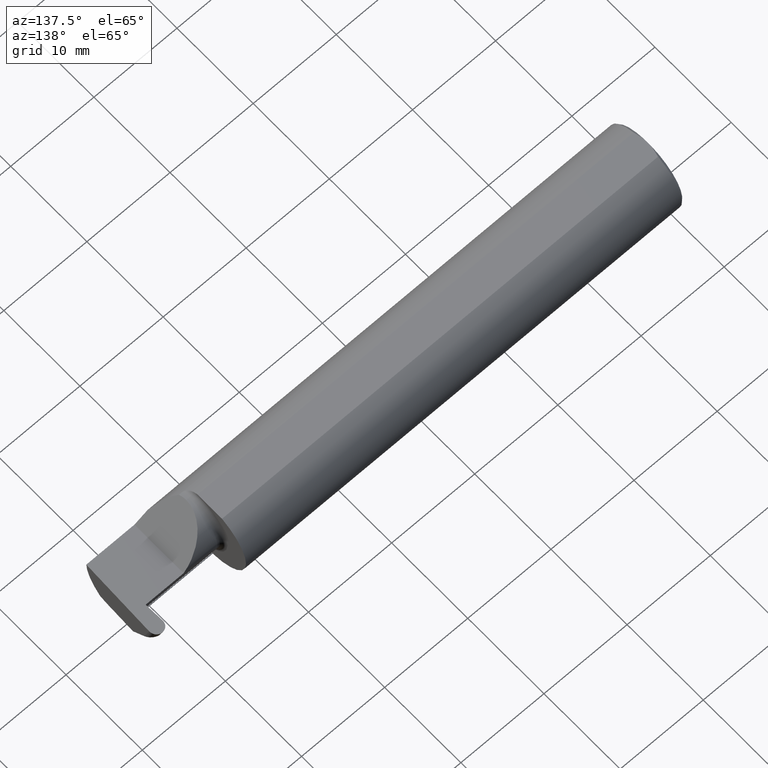
[diagram: clean part render]
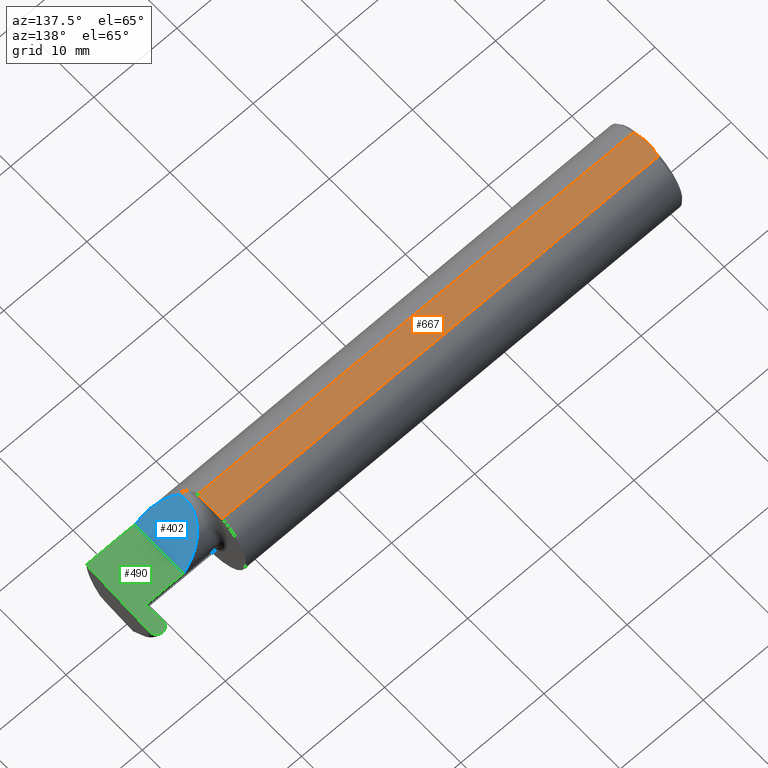
[diagram: same view with three faces highlighted in distinct colors, each labeled with its STEP entity id]
A machine part, auxiliary view with three faces highlighted in distinct colors.
Their STEP definitions:

[orange] entity #667 — the highlighted planar face has unit normal (0, 0, 1).
#13 = VERTEX_POINT ( 'NONE', #480 ) ;
#19 = CARTESIAN_POINT ( 'NONE',  ( 0.000000000000000000, 0.06325108694718235836, 0.1763499999999999235 ) ) ;
#20 = EDGE_CURVE ( 'NONE', #189, #408, #139, .T. ) ;
#48 = ORIENTED_EDGE ( 'NONE', *, *, #171, .T. ) ;
#54 = EDGE_CURVE ( 'NONE', #640, #363, #390, .T. ) ;
#57 = CARTESIAN_POINT ( 'NONE',  ( 0.005155213631852355663, 0.04890080824240217866, 0.1763499999999999235 ) ) ;
#68 = AXIS2_PLACEMENT_3D ( 'NONE', #162, #338, #772 ) ;
#70 = CARTESIAN_POINT ( 'NONE',  ( 0.009999999999999346217, -0.06325108694718235836, 0.1763499999999999235 ) ) ;
#75 = EDGE_CURVE ( 'NONE', #408, #640, #115, .T. ) ;
#87 = CARTESIAN_POINT ( 'NONE',  ( 0.000000000000000000, -0.01880691362239451242, 0.1763499999999999235 ) ) ;
#115 = LINE ( 'NONE', #542, #391 ) ;
#130 = ORIENTED_EDGE ( 'NONE', *, *, #570, .T. ) ;
#139 = B_SPLINE_CURVE_WITH_KNOTS ( 'NONE', 3,
 ( #620, #173, #610, #420 ),
 .UNSPECIFIED., .F., .F.,
 ( 4, 4 ),
 ( 0.009771445421851449736, 0.01092787937989102981 ),
 .UNSPECIFIED. ) ;
#162 = CARTESIAN_POINT ( 'NONE',  ( 2.876828993045917215, 0.1873499999999998500, 0.1763499999999999235 ) ) ;
#171 = EDGE_CURVE ( 'NONE', #624, #13, #260, .T. ) ;
#173 = CARTESIAN_POINT ( 'NONE',  ( 0.005151108632379595466, -0.04888864921576189376, 0.1763499999999999235 ) ) ;
#185 = VECTOR ( 'NONE', #458, 39.37007874015748143 ) ;
#189 = VERTEX_POINT ( 'NONE', #70 ) ;
#209 = VECTOR ( 'NONE', #721, 39.37007874015748143 ) ;
#260 = LINE ( 'NONE', #810, #601 ) ;
#273 = CARTESIAN_POINT ( 'NONE',  ( 0.000000000000000000, -0.06325108694718235836, 0.1763499999999999235 ) ) ;
#285 = ORIENTED_EDGE ( 'NONE', *, *, #54, .F. ) ;
#317 = EDGE_CURVE ( 'NONE', #13, #363, #707, .T. ) ;
#328 = EDGE_LOOP ( 'NONE', ( #130, #48, #679, #285, #341, #465 ) ) ;
#338 = DIRECTION ( 'NONE',  ( 0.000000000000000000, 0.000000000000000000, 1.000000000000000000 ) ) ;
#341 = ORIENTED_EDGE ( 'NONE', *, *, #75, .F. ) ;
#362 = CARTESIAN_POINT ( 'NONE',  ( 0.009999999999999346217, 0.06325108694718235836, 0.1763499999999999235 ) ) ;
#363 = VERTEX_POINT ( 'NONE', #768 ) ;
#370 = CARTESIAN_POINT ( 'NONE',  ( 0.000000000000000000, 0.01880691362239451242, 0.1763499999999999235 ) ) ;
#390 = B_SPLINE_CURVE_WITH_KNOTS ( 'NONE', 3,
 ( #370, #425, #57, #362 ),
 .UNSPECIFIED., .F., .F.,
 ( 4, 4 ),
 ( 0.01188664626022267051, 0.01304646959483758001 ),
 .UNSPECIFIED. ) ;
#391 = VECTOR ( 'NONE', #808, 39.37007874015748143 ) ;
#408 = VERTEX_POINT ( 'NONE', #87 ) ;
#420 = CARTESIAN_POINT ( 'NONE',  ( 0.000000000000000000, -0.01880691362239451242, 0.1763499999999999235 ) ) ;
#425 = CARTESIAN_POINT ( 'NONE',  ( 0.001616639753276218755, 0.03405189565400963680, 0.1763499999999999235 ) ) ;
#458 = DIRECTION ( 'NONE',  ( 1.000000000000000000, 0.000000000000000000, 0.000000000000000000 ) ) ;
#465 = ORIENTED_EDGE ( 'NONE', *, *, #20, .F. ) ;
#475 = FACE_OUTER_BOUND ( 'NONE', #328, .T. ) ;
#480 = CARTESIAN_POINT ( 'NONE',  ( 2.075000000000000178, 0.06325108694718235836, 0.1763499999999999235 ) ) ;
#542 = CARTESIAN_POINT ( 'NONE',  ( 0.000000000000000000, 0.1873499999999998500, 0.1763499999999999235 ) ) ;
#570 = EDGE_CURVE ( 'NONE', #189, #624, #612, .T. ) ;
#601 = VECTOR ( 'NONE', #696, 39.37007874015748143 ) ;
#610 = CARTESIAN_POINT ( 'NONE',  ( 0.001595548104417217512, -0.03385300050298979679, 0.1763499999999999235 ) ) ;
#612 = LINE ( 'NONE', #273, #185 ) ;
#620 = CARTESIAN_POINT ( 'NONE',  ( 0.009999999999999346217, -0.06325108694718235836, 0.1763499999999999235 ) ) ;
#624 = VERTEX_POINT ( 'NONE', #659 ) ;
#640 = VERTEX_POINT ( 'NONE', #789 ) ;
#659 = CARTESIAN_POINT ( 'NONE',  ( 2.075000000000000178, -0.06325108694718283020, 0.1763499999999999235 ) ) ;
#667 = ADVANCED_FACE ( 'NONE', ( #475 ), #727, .T. ) ;
#679 = ORIENTED_EDGE ( 'NONE', *, *, #317, .T. ) ;
#696 = DIRECTION ( 'NONE',  ( 0.000000000000000000, 1.000000000000000000, 0.000000000000000000 ) ) ;
#707 = LINE ( 'NONE', #19, #209 ) ;
#721 = DIRECTION ( 'NONE',  ( -1.000000000000000000, -0.000000000000000000, -0.000000000000000000 ) ) ;
#727 = PLANE ( 'NONE',  #68 ) ;
#768 = CARTESIAN_POINT ( 'NONE',  ( 0.009999999999999346217, 0.06325108694718235836, 0.1763499999999999235 ) ) ;
#772 = DIRECTION ( 'NONE',  ( 1.000000000000000000, 0.000000000000000000, -0.000000000000000000 ) ) ;
#789 = CARTESIAN_POINT ( 'NONE',  ( 0.000000000000000000, 0.01880691362239451242, 0.1763499999999999235 ) ) ;
#808 = DIRECTION ( 'NONE',  ( -0.000000000000000000, 1.000000000000000000, -0.000000000000000000 ) ) ;
#810 = CARTESIAN_POINT ( 'NONE',  ( 2.075000000000000178, 0.1873499999999998500, 0.1763499999999999235 ) ) ;

[blue] entity #402 — the highlighted planar face has unit normal (-0.7071, 0, -0.7071).
#2 = CARTESIAN_POINT ( 'NONE',  ( 2.113883229301068312, -0.1172600179964003175, 0.1461167706989304760 ) ) ;
#15 = DIRECTION ( 'NONE',  ( -0.7071067811865441310, 0.000000000000000000, -0.7071067811865510144 ) ) ;
#32 = CARTESIAN_POINT ( 'NONE',  ( 2.109999999999998987, -0.08334999999999999354, 0.1500000000000000500 ) ) ;
#92 = EDGE_CURVE ( 'NONE', #700, #756, #635, .T. ) ;
#118 = CARTESIAN_POINT ( 'NONE',  ( 2.202189699843948301, -0.1873500000000000443, 0.05781030015605120170 ) ) ;
#129 =( BOUNDED_CURVE ( )  B_SPLINE_CURVE ( 3, ( #591, #286, #213, #401 ),
 .UNSPECIFIED., .F., .F. ) 
 B_SPLINE_CURVE_WITH_KNOTS ( ( 4, 4 ),
 ( 0.000000000000000000, 1.570796326794896336 ),
 .UNSPECIFIED. ) 
 CURVE ( )  GEOMETRIC_REPRESENTATION_ITEM ( )  RATIONAL_B_SPLINE_CURVE ( ( 1.000000000000000000, 0.8047378541243650485, 0.8047378541243650485, 1.000000000000000000 ) ) 
 REPRESENTATION_ITEM ( '' )  );
#202 = CARTESIAN_POINT ( 'NONE',  ( 2.260000000000000231, -0.2500000000000000555, 2.939152317953647352E-17 ) ) ;
#211 = PLANE ( 'NONE',  #485 ) ;
#213 = CARTESIAN_POINT ( 'NONE',  ( 2.172132034355963359, 0.06665000000000001479, 0.08786796564403576149 ) ) ;
#214 = CARTESIAN_POINT ( 'NONE',  ( 2.109999999999998543, -0.09477667630339406402, 0.1500000000000000222 ) ) ;
#215 = EDGE_LOOP ( 'NONE', ( #666, #308, #771, #816 ) ) ;
#284 = LINE ( 'NONE', #518, #473 ) ;
#286 = CARTESIAN_POINT ( 'NONE',  ( 2.109999999999998543, 0.004517965644035750600, 0.1500000000000000500 ) ) ;
#308 = ORIENTED_EDGE ( 'NONE', *, *, #92, .F. ) ;
#335 = DIRECTION ( 'NONE',  ( -0.000000000000000000, 1.000000000000000000, -0.000000000000000000 ) ) ;
#361 = CARTESIAN_POINT ( 'NONE',  ( 2.109999999999998987, -0.08334999999999999354, 0.1500000000000000500 ) ) ;
#365 = CARTESIAN_POINT ( 'NONE',  ( 2.150065971957464850, -0.1623470442677540371, 0.1099340280425340488 ) ) ;
#366 = EDGE_CURVE ( 'NONE', #756, #549, #718, .T. ) ;
#401 = CARTESIAN_POINT ( 'NONE',  ( 2.260000000000000231, 0.06665000000000002867, 5.204748896376251932E-17 ) ) ;
#402 = ADVANCED_FACE ( 'NONE', ( #710 ), #211, .F. ) ;
#417 = EDGE_CURVE ( 'NONE', #700, #539, #284, .T. ) ;
#432 = CARTESIAN_POINT ( 'NONE',  ( 2.260000000000000231, -0.1873499999999999888, 2.939152317953647352E-17 ) ) ;
#464 = DIRECTION ( 'NONE',  ( -0.7071067811865509034, 0.000000000000000000, 0.7071067811865440200 ) ) ;
#473 = VECTOR ( 'NONE', #335, 39.37007874015748143 ) ;
#485 = AXIS2_PLACEMENT_3D ( 'NONE', #202, #15, #464 ) ;
#517 = CARTESIAN_POINT ( 'NONE',  ( 2.260000000000000231, -0.1873499999999999888, 2.939152317953647352E-17 ) ) ;
#518 = CARTESIAN_POINT ( 'NONE',  ( 2.260000000000000231, -0.2500000000000000555, 2.939152317953647352E-17 ) ) ;
#539 = VERTEX_POINT ( 'NONE', #546 ) ;
#546 = CARTESIAN_POINT ( 'NONE',  ( 2.260000000000000231, 0.06665000000000002867, 5.204748896376251932E-17 ) ) ;
#549 = VERTEX_POINT ( 'NONE', #361 ) ;
#553 = CARTESIAN_POINT ( 'NONE',  ( 2.113883229301068312, -0.1172600179964003175, 0.1461167706989304760 ) ) ;
#581 = CARTESIAN_POINT ( 'NONE',  ( 2.111300037307154209, -0.1061291577212407078, 0.1486999626928446339 ) ) ;
#585 = CARTESIAN_POINT ( 'NONE',  ( 2.113883229301068312, -0.1172600179964003175, 0.1461167706989304760 ) ) ;
#591 = CARTESIAN_POINT ( 'NONE',  ( 2.109999999999998987, -0.08334999999999999354, 0.1500000000000000500 ) ) ;
#607 = EDGE_CURVE ( 'NONE', #549, #539, #129, .T. ) ;
#635 =( BOUNDED_CURVE ( )  B_SPLINE_CURVE ( 3, ( #432, #118, #365, #553 ),
 .UNSPECIFIED., .F., .F. ) 
 B_SPLINE_CURVE_WITH_KNOTS ( ( 4, 4 ),
 ( 4.712388980384688786, 5.606916381293139295 ),
 .UNSPECIFIED. ) 
 CURVE ( )  GEOMETRIC_REPRESENTATION_ITEM ( )  RATIONAL_B_SPLINE_CURVE ( ( 1.000000000000000000, 0.9344226172588797619, 0.9344226172588797619, 1.000000000000000000 ) ) 
 REPRESENTATION_ITEM ( '' )  );
#666 = ORIENTED_EDGE ( 'NONE', *, *, #366, .F. ) ;
#700 = VERTEX_POINT ( 'NONE', #517 ) ;
#710 = FACE_OUTER_BOUND ( 'NONE', #215, .T. ) ;
#718 =( BOUNDED_CURVE ( )  B_SPLINE_CURVE ( 3, ( #585, #581, #214, #32 ),
 .UNSPECIFIED., .F., .F. ) 
 B_SPLINE_CURVE_WITH_KNOTS ( ( 4, 4 ),
 ( 6.055147272130144920, 6.283185307179586232 ),
 .UNSPECIFIED. ) 
 CURVE ( )  GEOMETRIC_REPRESENTATION_ITEM ( )  RATIONAL_B_SPLINE_CURVE ( ( 1.000000000000000000, 0.9956712472009932036, 0.9956712472009932036, 1.000000000000000000 ) ) 
 REPRESENTATION_ITEM ( '' )  );
#756 = VERTEX_POINT ( 'NONE', #2 ) ;
#771 = ORIENTED_EDGE ( 'NONE', *, *, #417, .T. ) ;
#816 = ORIENTED_EDGE ( 'NONE', *, *, #607, .F. ) ;

[green] entity #490 — the highlighted planar face has unit normal (-0, 0, -1).
#24 = EDGE_CURVE ( 'NONE', #61, #676, #179, .T. ) ;
#29 = ORIENTED_EDGE ( 'NONE', *, *, #253, .T. ) ;
#42 = FACE_OUTER_BOUND ( 'NONE', #621, .T. ) ;
#49 = DIRECTION ( 'NONE',  ( 1.000000000000000000, 7.488084056613327882E-15, -0.000000000000000000 ) ) ;
#61 = VERTEX_POINT ( 'NONE', #746 ) ;
#82 = DIRECTION ( 'NONE',  ( 1.000000000000000000, 0.000000000000000000, 0.000000000000000000 ) ) ;
#86 = EDGE_CURVE ( 'NONE', #688, #513, #728, .T. ) ;
#100 = CARTESIAN_POINT ( 'NONE',  ( 2.439859874782298377, 0.06664999999999998703, 0.000000000000000000 ) ) ;
#104 = DIRECTION ( 'NONE',  ( -1.224646799147353947E-16, 0.000000000000000000, -1.000000000000000000 ) ) ;
#125 = ORIENTED_EDGE ( 'NONE', *, *, #704, .F. ) ;
#138 = ORIENTED_EDGE ( 'NONE', *, *, #568, .F. ) ;
#140 = CARTESIAN_POINT ( 'NONE',  ( 2.468721519699850209, 0.1846500000000000363, 0.000000000000000000 ) ) ;
#167 = VERTEX_POINT ( 'NONE', #502 ) ;
#172 = CARTESIAN_POINT ( 'NONE',  ( 3.749399456654646757E-32, -0.1873499999999999610, 3.061616997868383634E-16 ) ) ;
#179 = LINE ( 'NONE', #669, #261 ) ;
#192 = ORIENTED_EDGE ( 'NONE', *, *, #714, .F. ) ;
#205 = LINE ( 'NONE', #232, #562 ) ;
#224 = DIRECTION ( 'NONE',  ( -1.000000000000000000, 0.000000000000000000, 1.224646799147353947E-16 ) ) ;
#232 = CARTESIAN_POINT ( 'NONE',  ( 2.436880131316879083, 0.1519786885938757270, 0.000000000000000000 ) ) ;
#239 = VECTOR ( 'NONE', #674, 39.37007874015748143 ) ;
#253 = EDGE_CURVE ( 'NONE', #61, #347, #519, .T. ) ;
#261 = VECTOR ( 'NONE', #744, 39.37007874015747433 ) ;
#279 = CARTESIAN_POINT ( 'NONE',  ( 2.075000000000000178, 0.06665000000000002867, 5.204748896376251932E-17 ) ) ;
#284 = LINE ( 'NONE', #518, #473 ) ;
#287 = LINE ( 'NONE', #172, #239 ) ;
#324 = CARTESIAN_POINT ( 'NONE',  ( 2.500625205974851273, 0.1704329581048291409, -1.247844596711687595E-17 ) ) ;
#335 = DIRECTION ( 'NONE',  ( -0.000000000000000000, 1.000000000000000000, -0.000000000000000000 ) ) ;
#347 = VERTEX_POINT ( 'NONE', #397 ) ;
#350 = CARTESIAN_POINT ( 'NONE',  ( 2.500000000000000000, -0.2500000000000000555, 0.000000000000000000 ) ) ;
#357 = EDGE_CURVE ( 'NONE', #539, #167, #589, .T. ) ;
#360 = LINE ( 'NONE', #758, #695 ) ;
#367 = DIRECTION ( 'NONE',  ( -0.03489949670249346131, 0.9993908270190959842, -0.000000000000000000 ) ) ;
#371 = ORIENTED_EDGE ( 'NONE', *, *, #24, .F. ) ;
#374 = EDGE_CURVE ( 'NONE', #688, #347, #407, .T. ) ;
#397 = CARTESIAN_POINT ( 'NONE',  ( 2.468721519699850209, 0.1846500000000000363, 0.000000000000000000 ) ) ;
#407 = LINE ( 'NONE', #647, #627 ) ;
#412 = ORIENTED_EDGE ( 'NONE', *, *, #357, .F. ) ;
#417 = EDGE_CURVE ( 'NONE', #700, #539, #284, .T. ) ;
#424 = PLANE ( 'NONE',  #617 ) ;
#451 = CARTESIAN_POINT ( 'NONE',  ( 2.499932917084233264, 0.1506083980881225692, 0.000000000000000000 ) ) ;
#472 = VERTEX_POINT ( 'NONE', #100 ) ;
#473 = VECTOR ( 'NONE', #335, 39.37007874015748143 ) ;
#490 = ADVANCED_FACE ( 'NONE', ( #42 ), #424, .F. ) ;
#502 = CARTESIAN_POINT ( 'NONE',  ( 2.430739223982273156, 0.06664999999999991764, 0.000000000000000000 ) ) ;
#513 = VERTEX_POINT ( 'NONE', #797 ) ;
#517 = CARTESIAN_POINT ( 'NONE',  ( 2.260000000000000231, -0.1873499999999999888, 2.939152317953647352E-17 ) ) ;
#518 = CARTESIAN_POINT ( 'NONE',  ( 2.260000000000000231, -0.2500000000000000555, 2.939152317953647352E-17 ) ) ;
#519 =( BOUNDED_CURVE ( )  B_SPLINE_CURVE ( 3, ( #451, #324, #625, #140 ),
 .UNSPECIFIED., .F., .F. ) 
 B_SPLINE_CURVE_WITH_KNOTS ( ( 4, 4 ),
 ( 1.627103621474503159, 3.225696776093215590 ),
 .UNSPECIFIED. ) 
 CURVE ( )  GEOMETRIC_REPRESENTATION_ITEM ( )  RATIONAL_B_SPLINE_CURVE ( ( 1.000000000000000000, 0.7981407609938111491, 0.7981407609938111491, 1.000000000000000000 ) ) 
 REPRESENTATION_ITEM ( '' )  );
#524 = DIRECTION ( 'NONE',  ( 1.000000000000000000, -0.000000000000000000, -0.000000000000000000 ) ) ;
#538 = CARTESIAN_POINT ( 'NONE',  ( 2.436927982915767288, 0.1506083980881225137, 0.000000000000000000 ) ) ;
#539 = VERTEX_POINT ( 'NONE', #546 ) ;
#546 = CARTESIAN_POINT ( 'NONE',  ( 2.260000000000000231, 0.06665000000000002867, 5.204748896376251932E-17 ) ) ;
#562 = VECTOR ( 'NONE', #367, 39.37007874015748143 ) ;
#568 = EDGE_CURVE ( 'NONE', #676, #700, #287, .T. ) ;
#589 = LINE ( 'NONE', #279, #775 ) ;
#602 = CARTESIAN_POINT ( 'NONE',  ( 2.436235694025149279, 0.1704329581048291409, 7.809760431069554296E-18 ) ) ;
#613 = CARTESIAN_POINT ( 'NONE',  ( 2.468139380300150343, 0.1846500000000000363, 0.000000000000000000 ) ) ;
#617 = AXIS2_PLACEMENT_3D ( 'NONE', #350, #104, #224 ) ;
#621 = EDGE_LOOP ( 'NONE', ( #633, #652, #125, #192, #412, #717, #138, #371, #29 ) ) ;
#625 = CARTESIAN_POINT ( 'NONE',  ( 2.487590162989234077, 0.1846499999999998698, -1.088211360020844806E-17 ) ) ;
#627 = VECTOR ( 'NONE', #524, 39.37007874015748143 ) ;
#633 = ORIENTED_EDGE ( 'NONE', *, *, #374, .F. ) ;
#647 = CARTESIAN_POINT ( 'NONE',  ( -0.001039370078740541395, 0.1846500000000000363, 0.000000000000000000 ) ) ;
#652 = ORIENTED_EDGE ( 'NONE', *, *, #86, .T. ) ;
#669 = CARTESIAN_POINT ( 'NONE',  ( 2.499980768683121024, 0.1519786885938757826, 0.000000000000000000 ) ) ;
#674 = DIRECTION ( 'NONE',  ( -1.000000000000000000, -0.000000000000000000, -0.000000000000000000 ) ) ;
#676 = VERTEX_POINT ( 'NONE', #709 ) ;
#688 = VERTEX_POINT ( 'NONE', #713 ) ;
#695 = VECTOR ( 'NONE', #49, 39.37007874015748143 ) ;
#700 = VERTEX_POINT ( 'NONE', #517 ) ;
#704 = EDGE_CURVE ( 'NONE', #472, #513, #205, .T. ) ;
#709 = CARTESIAN_POINT ( 'NONE',  ( 2.488131149766799943, -0.1873499999999999888, 0.000000000000000000 ) ) ;
#713 = CARTESIAN_POINT ( 'NONE',  ( 2.468139380300150343, 0.1846500000000000363, 0.000000000000000000 ) ) ;
#714 = EDGE_CURVE ( 'NONE', #167, #472, #360, .T. ) ;
#717 = ORIENTED_EDGE ( 'NONE', *, *, #417, .F. ) ;
#728 =( BOUNDED_CURVE ( )  B_SPLINE_CURVE ( 3, ( #613, #803, #602, #538 ),
 .UNSPECIFIED., .F., .F. ) 
 B_SPLINE_CURVE_WITH_KNOTS ( ( 4, 4 ),
 ( 3.057488531086369754, 4.656081685705084183 ),
 .UNSPECIFIED. ) 
 CURVE ( )  GEOMETRIC_REPRESENTATION_ITEM ( )  RATIONAL_B_SPLINE_CURVE ( ( 1.000000000000000000, 0.7981407609938104830, 0.7981407609938104830, 1.000000000000000000 ) ) 
 REPRESENTATION_ITEM ( '' )  );
#744 = DIRECTION ( 'NONE',  ( -0.03489949670249308661, -0.9993908270190960952, 0.000000000000000000 ) ) ;
#746 = CARTESIAN_POINT ( 'NONE',  ( 2.499932917084233264, 0.1506083980881225692, 0.000000000000000000 ) ) ;
#758 = CARTESIAN_POINT ( 'NONE',  ( 2.439859874782298377, 0.06664999999999998703, 0.000000000000000000 ) ) ;
#775 = VECTOR ( 'NONE', #82, 39.37007874015748143 ) ;
#797 = CARTESIAN_POINT ( 'NONE',  ( 2.436927982915767288, 0.1506083980881225137, 0.000000000000000000 ) ) ;
#803 = CARTESIAN_POINT ( 'NONE',  ( 2.449270737010766030, 0.1846499999999998975, 6.213428064161130250E-18 ) ) ;